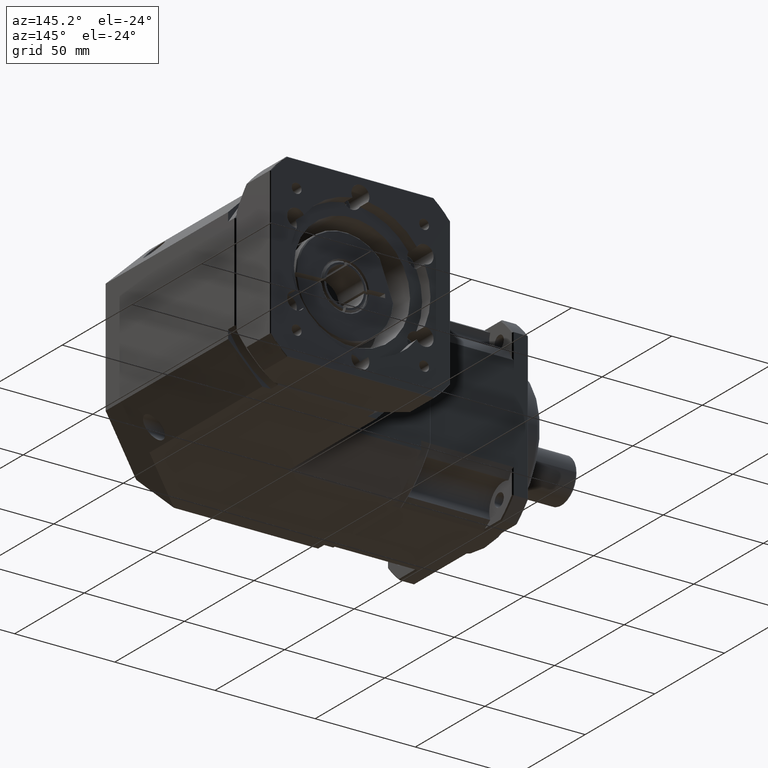
[diagram: clean part render]
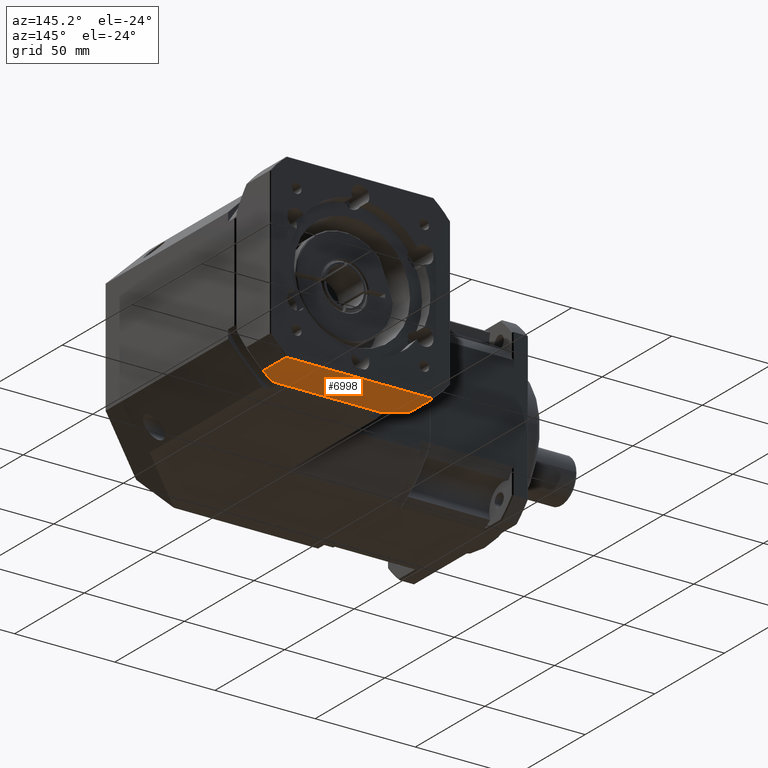
[diagram: same view with one face highlighted and labeled with its STEP entity id]
A machine part, auxiliary view. The second image highlights one B-rep face of the part: STEP entity #6998.
In plain terms, the highlighted planar face has unit normal (-0, -0, -1).
Its self-contained STEP definition (entity closure, byte-faithful):
#259=LINE('',#10914,#642);
#263=LINE('',#10961,#646);
#272=LINE('',#11135,#655);
#276=LINE('',#11208,#659);
#642=VECTOR('',#8680,73.184697854128);
#646=VECTOR('',#8702,16.4511904588865);
#655=VECTOR('',#8779,53.3666562565054);
#659=VECTOR('',#8799,16.4511904588865);
#1526=FACE_OUTER_BOUND('',#2061,.T.);
#2061=EDGE_LOOP('',(#4925,#4926,#4927,#4928,#4929,#4930));
#2651=CIRCLE('',#7606,54.9181208709839);
#2652=CIRCLE('',#7608,54.9181208709839);
#3061=VERTEX_POINT('',#10880);
#3063=VERTEX_POINT('',#10899);
#3069=VERTEX_POINT('',#10959);
#3099=VERTEX_POINT('',#11133);
#3100=VERTEX_POINT('',#11134);
#3105=VERTEX_POINT('',#11206);
#3743=EDGE_CURVE('',#3063,#3061,#259,.T.);
#3754=EDGE_CURVE('',#3063,#3069,#263,.T.);
#3797=EDGE_CURVE('',#3099,#3100,#272,.T.);
#3808=EDGE_CURVE('',#3069,#3100,#2651,.T.);
#3809=EDGE_CURVE('',#3099,#3105,#2652,.T.);
#3810=EDGE_CURVE('',#3105,#3061,#276,.T.);
#4925=ORIENTED_EDGE('',*,*,#3743,.F.);
#4926=ORIENTED_EDGE('',*,*,#3754,.T.);
#4927=ORIENTED_EDGE('',*,*,#3808,.T.);
#4928=ORIENTED_EDGE('',*,*,#3797,.F.);
#4929=ORIENTED_EDGE('',*,*,#3809,.T.);
#4930=ORIENTED_EDGE('',*,*,#3810,.T.);
#6344=PLANE('',#7607);
#6998=ADVANCED_FACE('',(#1526),#6344,.T.);
#7606=AXIS2_PLACEMENT_3D('',#11204,#8793,#8794);
#7607=AXIS2_PLACEMENT_3D('',#11205,#8795,#8796);
#7608=AXIS2_PLACEMENT_3D('',#11207,#8797,#8798);
#8680=DIRECTION('',(-1.,2.75472102774943E-15,5.73434529027572E-15));
#8702=DIRECTION('',(-2.75472102774942E-15,-1.,2.67480246924973E-16));
#8779=DIRECTION('',(1.,-2.75472102774943E-15,-5.73434529027572E-15));
#8793=DIRECTION('center_axis',(-5.73434529027572E-15,-2.67480246924957E-16,
-1.));
#8794=DIRECTION('ref_axis',(1.,-2.75472102774943E-15,-5.73434529027572E-15));
#8795=DIRECTION('center_axis',(-5.73434529027572E-15,-2.67480246924957E-16,
-1.));
#8796=DIRECTION('ref_axis',(1.,-2.8421709430404E-15,-5.6843418860808E-15));
#8797=DIRECTION('center_axis',(-5.73434529027572E-15,-2.67480246924957E-16,
-1.));
#8798=DIRECTION('ref_axis',(1.,-2.75472102774943E-15,-5.73434529027572E-15));
#8799=DIRECTION('',(2.75472102774942E-15,1.,-2.67480246924973E-16));
#10880=CARTESIAN_POINT('',(37.9831500337885,233.191471100404,-41.4938984203013));
#10899=CARTESIAN_POINT('',(111.167847887916,233.191471100403,-41.4938984203018));
#10914=CARTESIAN_POINT('',(52.0754989608525,233.191471100404,-41.4938984203014));
#10959=CARTESIAN_POINT('',(111.167847887916,216.740280641517,-41.4938984203018));
#10961=CARTESIAN_POINT('',(111.167847887916,233.691471100403,-41.4938984203018));
#11133=CARTESIAN_POINT('',(47.8921708325997,209.691471100404,-41.4938984203014));
#11134=CARTESIAN_POINT('',(101.258827089105,209.691471100403,-41.4938984203017));
#11135=CARTESIAN_POINT('',(52.0754989608524,209.691471100404,-41.4938984203014));
#11204=CARTESIAN_POINT('Origin',(74.5754989608526,257.691471100403,-41.4938984203016));
#11205=CARTESIAN_POINT('Origin',(29.5754989608525,233.691471100404,-41.4938984203013));
#11206=CARTESIAN_POINT('',(37.9831500337885,216.740280641517,-41.4938984203013));
#11207=CARTESIAN_POINT('Origin',(74.5754989608526,257.691471100403,-41.4938984203016));
#11208=CARTESIAN_POINT('',(37.9831500337885,233.691471100404,-41.4938984203013));